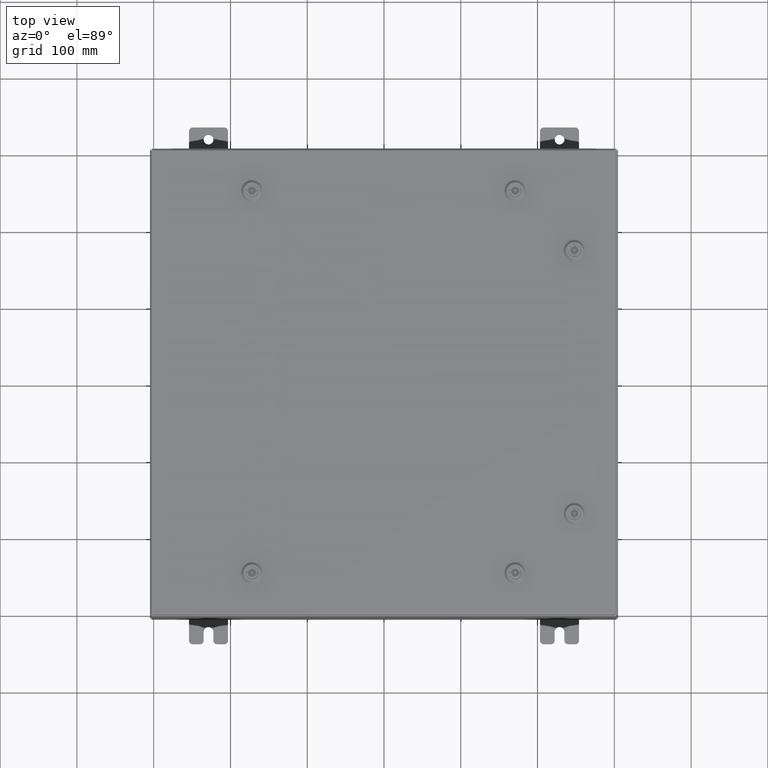
[diagram: clean part render]
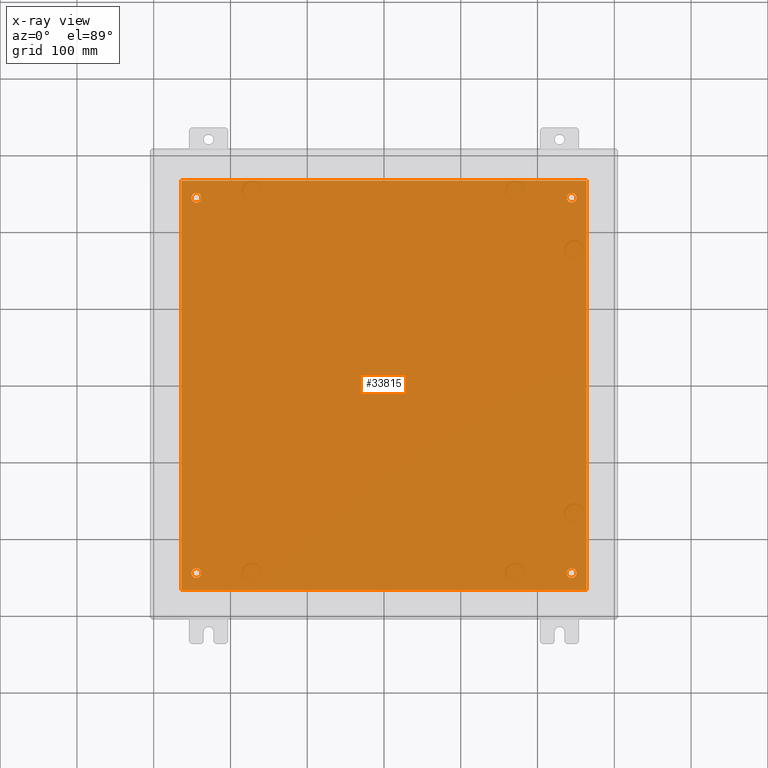
[diagram: x-ray — body ghosted, one internal face saturated and labeled with its STEP entity id]
A machine part, top view, then the same camera in x-ray: the body is ghosted and one INTERNAL B-rep face — a face not visible from any outside direction — is saturated and labeled: STEP entity #33815.
In plain terms, the highlighted planar face has unit normal (0, 0, -1).
Its self-contained STEP definition (entity closure, byte-faithful):
#454 = CIRCLE ( 'NONE', #9362, 0.2499999999999976100 ) ;
#2828 = DIRECTION ( 'NONE',  ( -1.000000000000000000, 0.0000000000000000000, 0.0000000000000000000 ) ) ;
#3241 = VERTEX_POINT ( 'NONE', #27142 ) ;
#3353 = LINE ( 'NONE', #13395, #40950 ) ;
#3371 = AXIS2_PLACEMENT_3D ( 'NONE', #34074, #4675, #38983 ) ;
#3861 = PLANE ( 'NONE',  #52350 ) ;
#4029 = FACE_BOUND ( 'NONE', #14520, .T. ) ;
#4675 = DIRECTION ( 'NONE',  ( -0.0000000000000000000, -0.0000000000000000000, 1.000000000000000000 ) ) ;
#4714 = VECTOR ( 'NONE', #61157, 39.37007874015748100 ) ;
#4751 = ORIENTED_EDGE ( 'NONE', *, *, #40483, .T. ) ;
#5273 = CIRCLE ( 'NONE', #57418, 0.2499999999999976100 ) ;
#5304 = DIRECTION ( 'NONE',  ( -0.0000000000000000000, -0.0000000000000000000, 1.000000000000000000 ) ) ;
#7775 = EDGE_CURVE ( 'NONE', #15253, #18753, #454, .T. ) ;
#7908 = ORIENTED_EDGE ( 'NONE', *, *, #55699, .F. ) ;
#8839 = DIRECTION ( 'NONE',  ( -1.000000000000000000, 0.0000000000000000000, -0.0000000000000000000 ) ) ;
#9362 = AXIS2_PLACEMENT_3D ( 'NONE', #34690, #5304, #39604 ) ;
#9459 = VERTEX_POINT ( 'NONE', #26246 ) ;
#10321 = AXIS2_PLACEMENT_3D ( 'NONE', #51209, #21872, #56124 ) ;
#11053 = EDGE_CURVE ( 'NONE', #42808, #28413, #37930, .T. ) ;
#11757 = CARTESIAN_POINT ( 'NONE',  ( 9.875000000000003600, -9.625000000000001800, -0.1039999999999999800 ) ) ;
#11892 = VECTOR ( 'NONE', #21641, 39.37007874015748100 ) ;
#12067 = CARTESIAN_POINT ( 'NONE',  ( -9.625000000000005300, -9.625000000000001800, -0.1039999999999999800 ) ) ;
#12106 = CIRCLE ( 'NONE', #10321, 0.2499999999999976100 ) ;
#12808 = CARTESIAN_POINT ( 'NONE',  ( 9.875000000000003600, 9.625000000000001800, -0.1039999999999999800 ) ) ;
#13395 = CARTESIAN_POINT ( 'NONE',  ( -10.50000000000000000, 10.50000000000000200, -0.1039999999999999800 ) ) ;
#13760 = CIRCLE ( 'NONE', #28823, 0.2499999999999987000 ) ;
#14383 = EDGE_LOOP ( 'NONE', ( #24437, #4751 ) ) ;
#14520 = EDGE_LOOP ( 'NONE', ( #45847, #42441 ) ) ;
#14899 = CARTESIAN_POINT ( 'NONE',  ( 10.38300000000000100, 10.50000000000000200, -0.1039999999999999800 ) ) ;
#15253 = VERTEX_POINT ( 'NONE', #11757 ) ;
#15457 = EDGE_CURVE ( 'NONE', #9459, #49967, #39486, .T. ) ;
#15586 = CARTESIAN_POINT ( 'NONE',  ( -9.625000000000005300, 9.625000000000001800, -0.1039999999999999800 ) ) ;
#15625 = DIRECTION ( 'NONE',  ( -0.0000000000000000000, -0.0000000000000000000, 1.000000000000000000 ) ) ;
#16138 = EDGE_LOOP ( 'NONE', ( #7908, #41542, #24339, #59354 ) ) ;
#16630 = CARTESIAN_POINT ( 'NONE',  ( -9.875000000000005300, -9.625000000000001800, -0.1039999999999999800 ) ) ;
#16995 = DIRECTION ( 'NONE',  ( -1.000000000000000000, 0.0000000000000000000, 0.0000000000000000000 ) ) ;
#17936 = CARTESIAN_POINT ( 'NONE',  ( 10.38299999999999900, -10.50000000000000000, -0.1039999999999999800 ) ) ;
#18591 = LINE ( 'NONE', #19518, #57681 ) ;
#18753 = VERTEX_POINT ( 'NONE', #24263 ) ;
#19518 = CARTESIAN_POINT ( 'NONE',  ( -10.50000000000000200, -10.50000000000000000, -0.1039999999999999800 ) ) ;
#19731 = EDGE_LOOP ( 'NONE', ( #29666, #42015 ) ) ;
#20278 = ORIENTED_EDGE ( 'NONE', *, *, #36687, .T. ) ;
#20514 = DIRECTION ( 'NONE',  ( -1.000000000000000000, 0.0000000000000000000, 0.0000000000000000000 ) ) ;
#21068 = VERTEX_POINT ( 'NONE', #17936 ) ;
#21641 = DIRECTION ( 'NONE',  ( 0.0000000000000000000, -1.000000000000000000, 0.0000000000000000000 ) ) ;
#21872 = DIRECTION ( 'NONE',  ( -0.0000000000000000000, -0.0000000000000000000, 1.000000000000000000 ) ) ;
#21984 = CARTESIAN_POINT ( 'NONE',  ( 10.38300000000000100, -10.50000000000000200, -0.1040000000000009100 ) ) ;
#22712 = CARTESIAN_POINT ( 'NONE',  ( -10.38299999999999900, 10.50000000000000400, -0.1040000000000031300 ) ) ;
#23251 = DIRECTION ( 'NONE',  ( -1.000000000000000000, -0.0000000000000000000, -0.0000000000000000000 ) ) ;
#23512 = CARTESIAN_POINT ( 'NONE',  ( -9.375000000000005300, 9.625000000000001800, -0.1039999999999999800 ) ) ;
#24263 = CARTESIAN_POINT ( 'NONE',  ( 9.375000000000007100, -9.625000000000001800, -0.1039999999999999800 ) ) ;
#24339 = ORIENTED_EDGE ( 'NONE', *, *, #32432, .F. ) ;
#24437 = ORIENTED_EDGE ( 'NONE', *, *, #48405, .T. ) ;
#25038 = CARTESIAN_POINT ( 'NONE',  ( -9.625000000000005300, 9.625000000000001800, -0.1039999999999999800 ) ) ;
#25378 = EDGE_CURVE ( 'NONE', #58564, #42052, #13760, .T. ) ;
#25542 = CARTESIAN_POINT ( 'NONE',  ( -10.38299999999999900, -10.50000000000000000, -0.1040000000000031300 ) ) ;
#26246 = CARTESIAN_POINT ( 'NONE',  ( 9.375000000000007100, 9.625000000000001800, -0.1039999999999999800 ) ) ;
#27142 = CARTESIAN_POINT ( 'NONE',  ( -9.375000000000005300, -9.625000000000001800, -0.1039999999999999800 ) ) ;
#28413 = VERTEX_POINT ( 'NONE', #25542 ) ;
#28655 = FACE_OUTER_BOUND ( 'NONE', #16138, .T. ) ;
#28732 = EDGE_LOOP ( 'NONE', ( #38625, #20278 ) ) ;
#28823 = AXIS2_PLACEMENT_3D ( 'NONE', #15586, #49849, #20514 ) ;
#29666 = ORIENTED_EDGE ( 'NONE', *, *, #7775, .T. ) ;
#29921 = DIRECTION ( 'NONE',  ( -1.000000000000000000, 0.0000000000000000000, 0.0000000000000000000 ) ) ;
#30157 = FACE_BOUND ( 'NONE', #28732, .T. ) ;
#30646 = AXIS2_PLACEMENT_3D ( 'NONE', #25038, #59262, #29921 ) ;
#30807 = LINE ( 'NONE', #21984, #4714 ) ;
#32245 = DIRECTION ( 'NONE',  ( -0.0000000000000000000, -0.0000000000000000000, 1.000000000000000000 ) ) ;
#32432 = EDGE_CURVE ( 'NONE', #50373, #42808, #3353, .T. ) ;
#33815 = ADVANCED_FACE ( 'NONE', ( #41639, #44709, #4029, #30157, #28655 ), #3861, .T. ) ;
#34074 = CARTESIAN_POINT ( 'NONE',  ( 9.625000000000005300, 9.625000000000001800, -0.1039999999999999800 ) ) ;
#34564 = CIRCLE ( 'NONE', #30646, 0.2499999999999987000 ) ;
#34690 = CARTESIAN_POINT ( 'NONE',  ( 9.625000000000005300, -9.625000000000001800, -0.1039999999999999800 ) ) ;
#36687 = EDGE_CURVE ( 'NONE', #42052, #58564, #34564, .T. ) ;
#37930 = LINE ( 'NONE', #22712, #11892 ) ;
#38625 = ORIENTED_EDGE ( 'NONE', *, *, #25378, .T. ) ;
#38669 = EDGE_CURVE ( 'NONE', #49967, #9459, #5273, .T. ) ;
#38983 = DIRECTION ( 'NONE',  ( -1.000000000000000000, 0.0000000000000000000, 0.0000000000000000000 ) ) ;
#39486 = CIRCLE ( 'NONE', #3371, 0.2499999999999976100 ) ;
#39604 = DIRECTION ( 'NONE',  ( -1.000000000000000000, 0.0000000000000000000, 0.0000000000000000000 ) ) ;
#40483 = EDGE_CURVE ( 'NONE', #57267, #3241, #59652, .T. ) ;
#40950 = VECTOR ( 'NONE', #23251, 39.37007874015748100 ) ;
#41135 = EDGE_CURVE ( 'NONE', #18753, #15253, #12106, .T. ) ;
#41542 = ORIENTED_EDGE ( 'NONE', *, *, #11053, .F. ) ;
#41639 = FACE_BOUND ( 'NONE', #14383, .T. ) ;
#42015 = ORIENTED_EDGE ( 'NONE', *, *, #41135, .T. ) ;
#42052 = VERTEX_POINT ( 'NONE', #52053 ) ;
#42292 = AXIS2_PLACEMENT_3D ( 'NONE', #12067, #46314, #16995 ) ;
#42441 = ORIENTED_EDGE ( 'NONE', *, *, #15457, .T. ) ;
#42808 = VERTEX_POINT ( 'NONE', #60700 ) ;
#44709 = FACE_BOUND ( 'NONE', #19731, .T. ) ;
#44946 = CARTESIAN_POINT ( 'NONE',  ( -9.625000000000005300, -9.625000000000001800, -0.1039999999999999800 ) ) ;
#45847 = ORIENTED_EDGE ( 'NONE', *, *, #38669, .T. ) ;
#46314 = DIRECTION ( 'NONE',  ( -0.0000000000000000000, -0.0000000000000000000, 1.000000000000000000 ) ) ;
#47814 = DIRECTION ( 'NONE',  ( 0.0000000000000000000, 0.0000000000000000000, -1.000000000000000000 ) ) ;
#48405 = EDGE_CURVE ( 'NONE', #3241, #57267, #54512, .T. ) ;
#48838 = DIRECTION ( 'NONE',  ( 1.000000000000000000, 0.0000000000000000000, 0.0000000000000000000 ) ) ;
#49849 = DIRECTION ( 'NONE',  ( -0.0000000000000000000, -0.0000000000000000000, 1.000000000000000000 ) ) ;
#49888 = DIRECTION ( 'NONE',  ( -1.000000000000000000, 0.0000000000000000000, 0.0000000000000000000 ) ) ;
#49967 = VERTEX_POINT ( 'NONE', #12808 ) ;
#50373 = VERTEX_POINT ( 'NONE', #14899 ) ;
#51041 = AXIS2_PLACEMENT_3D ( 'NONE', #44946, #15625, #49888 ) ;
#51209 = CARTESIAN_POINT ( 'NONE',  ( 9.625000000000005300, -9.625000000000001800, -0.1039999999999999800 ) ) ;
#52053 = CARTESIAN_POINT ( 'NONE',  ( -9.875000000000005300, 9.625000000000001800, -0.1039999999999999800 ) ) ;
#52350 = AXIS2_PLACEMENT_3D ( 'NONE', #62600, #47814, #8839 ) ;
#54512 = CIRCLE ( 'NONE', #51041, 0.2499999999999987000 ) ;
#55699 = EDGE_CURVE ( 'NONE', #28413, #21068, #18591, .T. ) ;
#56124 = DIRECTION ( 'NONE',  ( -1.000000000000000000, 0.0000000000000000000, 0.0000000000000000000 ) ) ;
#56196 = EDGE_CURVE ( 'NONE', #21068, #50373, #30807, .T. ) ;
#57267 = VERTEX_POINT ( 'NONE', #16630 ) ;
#57418 = AXIS2_PLACEMENT_3D ( 'NONE', #61559, #32245, #2828 ) ;
#57681 = VECTOR ( 'NONE', #48838, 39.37007874015748100 ) ;
#58564 = VERTEX_POINT ( 'NONE', #23512 ) ;
#59262 = DIRECTION ( 'NONE',  ( -0.0000000000000000000, -0.0000000000000000000, 1.000000000000000000 ) ) ;
#59354 = ORIENTED_EDGE ( 'NONE', *, *, #56196, .F. ) ;
#59652 = CIRCLE ( 'NONE', #42292, 0.2499999999999987000 ) ;
#60700 = CARTESIAN_POINT ( 'NONE',  ( -10.38299999999999900, 10.50000000000000400, -0.1040000000000031300 ) ) ;
#61157 = DIRECTION ( 'NONE',  ( 0.0000000000000000000, 1.000000000000000000, 0.0000000000000000000 ) ) ;
#61559 = CARTESIAN_POINT ( 'NONE',  ( 9.625000000000005300, 9.625000000000001800, -0.1039999999999999800 ) ) ;
#62600 = CARTESIAN_POINT ( 'NONE',  ( 0.0000000000000000000, 0.0000000000000000000, -0.1039999999999999800 ) ) ;